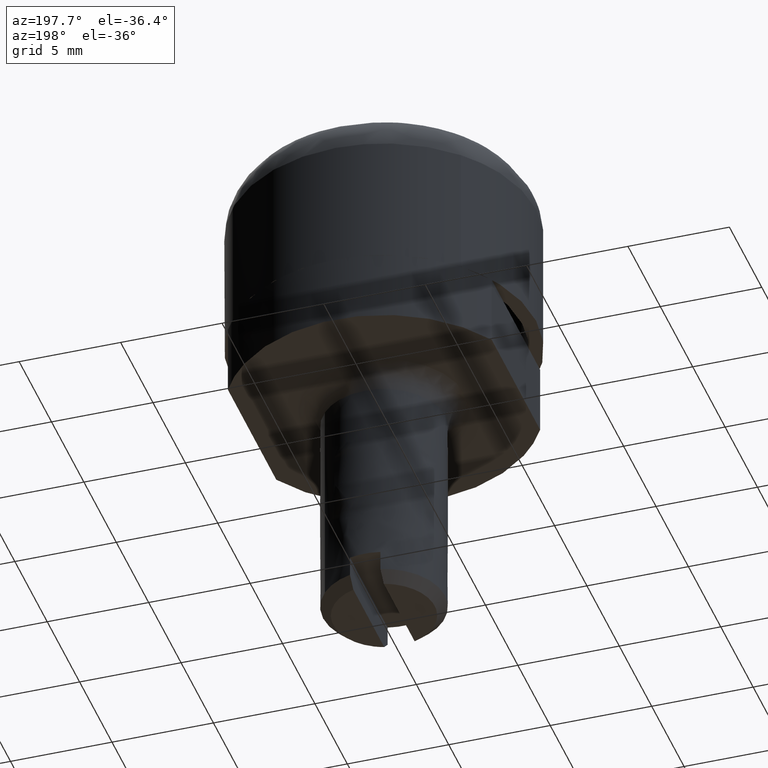
[diagram: clean part render]
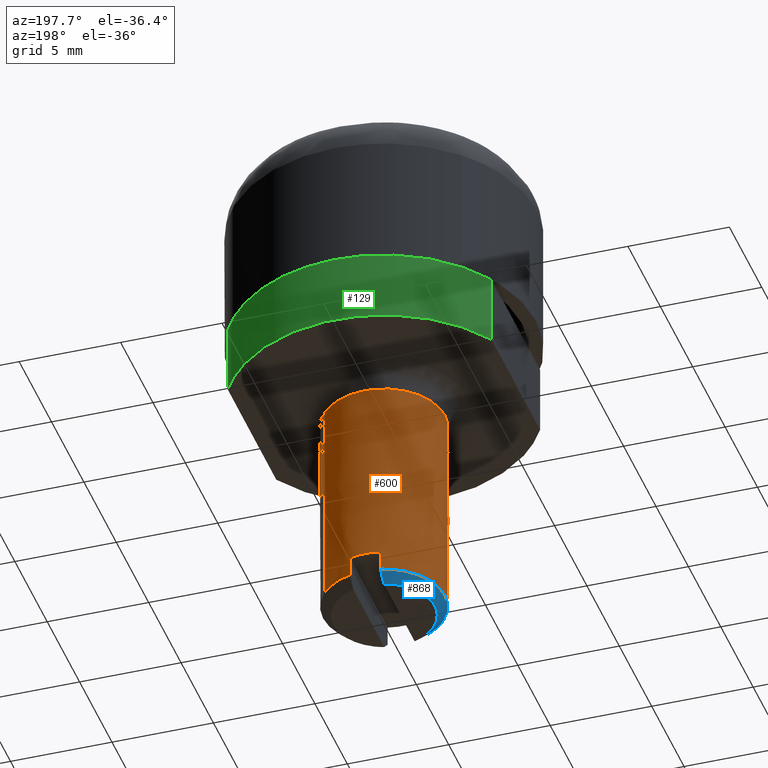
[diagram: same view with three faces highlighted in distinct colors, each labeled with its STEP entity id]
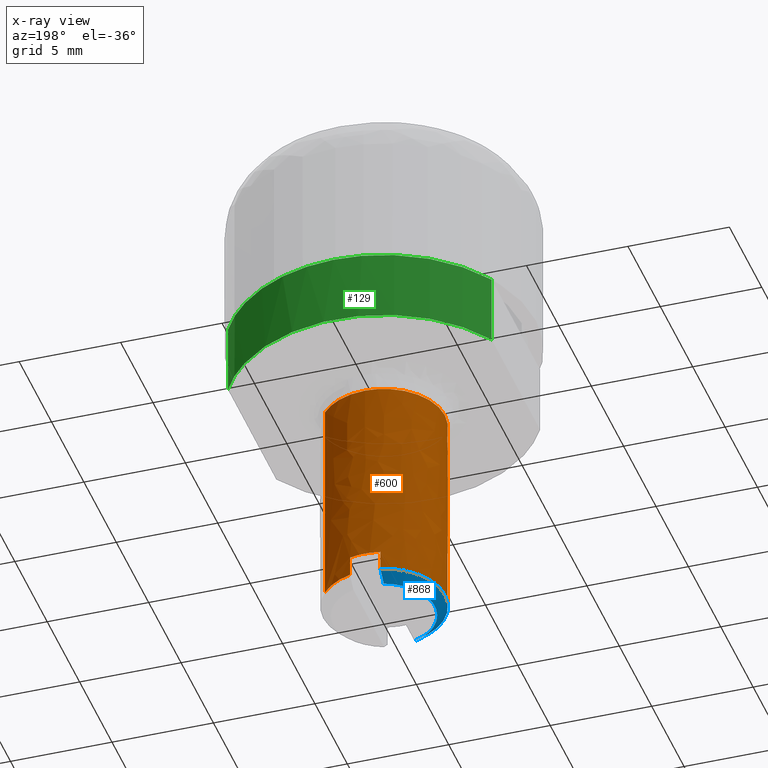
[diagram: x-ray of the same camera — body ghosted, the three highlighted faces saturated]
A machine part, auxiliary view with three faces highlighted in distinct colors.
The next image is the same camera in x-ray (body ghosted, the three faces saturated) — at least one of them is partly hidden behind the body in this view.
Their STEP definitions:

[orange] entity #600 — the highlighted face is a freeform B-spline surface patch.
#346=CARTESIAN_POINT('',(-2.999763132611336,-0.037698119658957,-4.499999999975778));
#347=VERTEX_POINT('',#346);
#361=CARTESIAN_POINT('',(-2.297376285157198,-1.929264679715385,-4.499999999978565));
#362=VERTEX_POINT('',#361);
#363=CARTESIAN_POINT('',(-2.297376285157198,-1.929264679715385,-4.499999999978565));
#364=CARTESIAN_POINT('',(-2.455959052806333,-1.740520722466693,-4.499999999977926));
#365=CARTESIAN_POINT('',(-2.696774013518654,-1.368947312245090,-4.499999999976989));
#366=CARTESIAN_POINT('',(-2.936663578310117,-0.722891258606001,-4.499999999975994));
#367=CARTESIAN_POINT('',(-2.996730345150822,-0.284201828073120,-4.499999999975790));
#368=CARTESIAN_POINT('',(-2.999763132611336,-0.037698119658957,-4.499999999975778));
#369=B_SPLINE_CURVE_WITH_KNOTS('',3,(#363,#364,#365,#366,#367,#368),.UNSPECIFIED.,.F.,.U.,(4,1,1,4),(4.451424E-009,0.739553931148252,1.318329389899540,2.057883316596331),.UNSPECIFIED.);
#370=EDGE_CURVE('',#362,#347,#369,.T.);
#456=CARTESIAN_POINT('',(2.297376285157198,1.929264679715385,-4.499999999978565));
#457=VERTEX_POINT('',#456);
#468=CARTESIAN_POINT('',(-0.018831363929755,2.999940896039878,-4.499999999987888));
#469=VERTEX_POINT('',#468);
#470=CARTESIAN_POINT('',(-0.018831363929755,2.999940896039878,-4.499999999987888));
#471=CARTESIAN_POINT('',(0.180212532569581,3.001215222277387,-4.499999999987081));
#472=CARTESIAN_POINT('',(0.523595422554449,2.969062076635223,-4.499999999985707));
#473=CARTESIAN_POINT('',(0.975218947820370,2.846564850168240,-4.499999999983871));
#474=CARTESIAN_POINT('',(1.418858293397856,2.659721774321536,-4.499999999982099));
#475=CARTESIAN_POINT('',(1.873046677086814,2.370615902700119,-4.499999999980267));
#476=CARTESIAN_POINT('',(2.169389122831132,2.081707875464126,-4.499999999979076));
#477=CARTESIAN_POINT('',(2.297376285157198,1.929264679715385,-4.499999999978565));
#478=B_SPLINE_CURVE_WITH_KNOTS('',3,(#470,#471,#472,#473,#474,#475,#476,#477),.UNSPECIFIED.,.F.,.U.,(4,1,1,1,1,4),(7.144080E-009,0.597140019803482,1.029554977656867,1.400188935668898,2.038513050043141,2.635653062702561),.UNSPECIFIED.);
#479=EDGE_CURVE('',#469,#457,#478,.T.);
#481=CARTESIAN_POINT('',(-3.0,0.0,-4.500000000000000));
#482=VERTEX_POINT('',#481);
#483=CARTESIAN_POINT('',(-3.0,0.0,-4.500000000000000));
#484=CARTESIAN_POINT('',(-3.000040067102521,0.220012352885969,-4.500000000000000));
#485=CARTESIAN_POINT('',(-2.954073572321652,0.635568828050411,-4.499999999999796));
#486=CARTESIAN_POINT('',(-2.769886132041665,1.195563584765112,-4.499999999999039));
#487=CARTESIAN_POINT('',(-2.534114438776829,1.625921563100044,-4.499999999998067));
#488=CARTESIAN_POINT('',(-2.238540539340337,2.016518895890759,-4.499999999996873));
#489=CARTESIAN_POINT('',(-1.892727450440693,2.347914660210110,-4.499999999995473));
#490=CARTESIAN_POINT('',(-1.514948621890361,2.599114926730439,-4.499999999993929));
#491=CARTESIAN_POINT('',(-1.152821852790187,2.777860580665947,-4.499999999992478));
#492=CARTESIAN_POINT('',(-0.678489309764464,2.943704945094957,-4.499999999990547));
#493=CARTESIAN_POINT('',(-0.275512820174190,2.998405519271288,-4.499999999988934));
#494=CARTESIAN_POINT('',(-0.018831363929755,2.999940896039878,-4.499999999987888));
#495=B_SPLINE_CURVE_WITH_KNOTS('',3,(#483,#484,#485,#486,#487,#488,#489,#490,#491,#492,#493,#494),.UNSPECIFIED.,.F.,.U.,(4,1,1,1,1,1,1,1,1,4),(0.000000010308226,0.660030275002896,1.246734357943298,1.760097363153323,2.126789838268186,2.713471685983198,3.190169100183120,3.483520956439575,3.923549701219110,4.693586707976055),.UNSPECIFIED.);
#496=EDGE_CURVE('',#482,#469,#495,.T.);
#498=CARTESIAN_POINT('',(-2.999763132611336,-0.037698119658957,-4.499999999975778));
#499=CARTESIAN_POINT('',(-3.0,0.0,-4.500000000000000));
#500=QUASI_UNIFORM_CURVE('',1,(#498,#499),.UNSPECIFIED.,.F.,.U.);
#501=EDGE_CURVE('',#347,#482,#500,.T.);
#509=CARTESIAN_POINT('',(-2.297376296188659,-1.929264666579077,-4.237499999975177));
#510=CARTESIAN_POINT('',(-4.226640962767736,0.368111629609582,-4.237499999975177));
#511=CARTESIAN_POINT('',(-1.929264666579077,2.297376296188659,-4.237499999975177));
#512=CARTESIAN_POINT('',(0.368111629609582,4.226640962767736,-4.237499999975177));
#513=CARTESIAN_POINT('',(2.297376296188659,1.929264666579077,-4.237499999975177));
#514=CARTESIAN_POINT('',(-2.297376296188659,-1.929264666579077,-15.269062500000411));
#515=CARTESIAN_POINT('',(-4.226640962767736,0.368111629609582,-15.269062500000411));
#516=CARTESIAN_POINT('',(-1.929264666579077,2.297376296188659,-15.269062500000411));
#517=CARTESIAN_POINT('',(0.368111629609582,4.226640962767736,-15.269062500000411));
#518=CARTESIAN_POINT('',(2.297376296188659,1.929264666579077,-15.269062500000411));
#526=(BOUNDED_SURFACE()B_SPLINE_SURFACE(2,1,((#509,#514),(#510,#515),(#511,#516),(#512,#517),(#513,#518)),.UNSPECIFIED.,.F.,.F.,.U.)B_SPLINE_SURFACE_WITH_KNOTS((3,2,3),(2,2),(0.0,4.970562748477139,9.941125496954278),(0.0,11.031562500025240),.UNSPECIFIED.)GEOMETRIC_REPRESENTATION_ITEM()RATIONAL_B_SPLINE_SURFACE(((1.0,1.0),(0.707106781186548,0.707106781186548),(1.0,1.0),(0.707106781186548,0.707106781186548),(1.0,1.0)))REPRESENTATION_ITEM('')SURFACE());
#527=ORIENTED_EDGE('',*,*,#370,.T.);
#528=ORIENTED_EDGE('',*,*,#501,.T.);
#529=ORIENTED_EDGE('',*,*,#496,.T.);
#530=ORIENTED_EDGE('',*,*,#479,.T.);
#531=CARTESIAN_POINT('',(2.297376290498585,1.929264673354842,-14.999999999999799));
#532=VERTEX_POINT('',#531);
#533=CARTESIAN_POINT('',(2.297376285157198,1.929264679715385,-4.499999999978565));
#534=CARTESIAN_POINT('',(2.297376290498585,1.929264673354842,-14.999999999999799));
#535=QUASI_UNIFORM_CURVE('',1,(#533,#534),.UNSPECIFIED.,.F.,.U.);
#536=EDGE_CURVE('',#457,#532,#535,.T.);
#537=ORIENTED_EDGE('',*,*,#536,.T.);
#538=CARTESIAN_POINT('',(0.750000000000000,2.904737509655565,-14.999999999999799));
#539=VERTEX_POINT('',#538);
#540=CARTESIAN_POINT('',(0.750000000000000,2.904737509655565,-14.999999999999799));
#541=CARTESIAN_POINT('',(0.984365454758908,2.844286311687188,-14.999999999999780));
#542=CARTESIAN_POINT('',(1.338398493443904,2.705347464707996,-14.999999999999870));
#543=CARTESIAN_POINT('',(1.863754981124429,2.374177242307407,-14.999999999999689));
#544=CARTESIAN_POINT('',(2.141768917019797,2.114647278046655,-14.999999999999931));
#545=CARTESIAN_POINT('',(2.297376290498585,1.929264673354842,-14.999999999999799));
#546=B_SPLINE_CURVE_WITH_KNOTS('',3,(#540,#541,#542,#543,#544,#545),.UNSPECIFIED.,.F.,.U.,(4,1,1,4),(4.335772E-009,0.726087514668889,1.132695392775629,1.858782903108686),.UNSPECIFIED.);
#547=EDGE_CURVE('',#539,#532,#546,.T.);
#548=ORIENTED_EDGE('',*,*,#547,.F.);
#549=CARTESIAN_POINT('',(0.750000000000000,2.904737509655585,-14.0));
#550=VERTEX_POINT('',#549);
#551=CARTESIAN_POINT('',(0.750000000000000,2.904737509655565,-14.999999999999799));
#552=CARTESIAN_POINT('',(0.750000000000000,2.904737509655585,-14.0));
#553=QUASI_UNIFORM_CURVE('',1,(#551,#552),.UNSPECIFIED.,.F.,.U.);
#554=EDGE_CURVE('',#539,#550,#553,.T.);
#555=ORIENTED_EDGE('',*,*,#554,.T.);
#556=CARTESIAN_POINT('',(-0.750000000000000,2.904737509655565,-14.0));
#557=VERTEX_POINT('',#556);
#558=CARTESIAN_POINT('',(0.750000000000000,2.904737509655585,-14.0));
#559=CARTESIAN_POINT('',(0.490066336209845,2.971942703427581,-14.000000000000020));
#560=CARTESIAN_POINT('',(-0.016297268594395,3.032024664104668,-14.0));
#561=CARTESIAN_POINT('',(-0.520642918801046,2.964012642182939,-14.0));
#562=CARTESIAN_POINT('',(-0.750000000000000,2.904737509655565,-14.0));
#563=B_SPLINE_CURVE_WITH_KNOTS('',3,(#558,#559,#560,#561,#562),.UNSPECIFIED.,.F.,.U.,(4,1,4),(2.646635E-009,0.805418209116933,1.516085469469354),.UNSPECIFIED.);
#564=EDGE_CURVE('',#550,#557,#563,.T.);
#565=ORIENTED_EDGE('',*,*,#564,.T.);
#566=CARTESIAN_POINT('',(-0.750000000000000,2.904737509655565,-14.999999999999799));
#567=VERTEX_POINT('',#566);
#568=CARTESIAN_POINT('',(-0.750000000000000,2.904737509655565,-14.0));
#569=CARTESIAN_POINT('',(-0.750000000000000,2.904737509655565,-14.999999999999799));
#570=QUASI_UNIFORM_CURVE('',1,(#568,#569),.UNSPECIFIED.,.F.,.U.);
#571=EDGE_CURVE('',#557,#567,#570,.T.);
#572=ORIENTED_EDGE('',*,*,#571,.T.);
#573=CARTESIAN_POINT('',(-2.297376290498585,-1.929264673354842,-14.999999999999799));
#574=VERTEX_POINT('',#573);
#575=CARTESIAN_POINT('',(-2.297376290498585,-1.929264673354842,-14.999999999999799));
#576=CARTESIAN_POINT('',(-2.429108805555042,-1.772437068201558,-14.999999999999790));
#577=CARTESIAN_POINT('',(-2.673615697547601,-1.412001133079823,-14.999999999999799));
#578=CARTESIAN_POINT('',(-2.893927731185535,-0.859649540267899,-14.999999999999840));
#579=CARTESIAN_POINT('',(-2.994977221643329,-0.323844444255617,-14.999999999999719));
#580=CARTESIAN_POINT('',(-3.006861747197676,0.086885687235917,-14.999999999999901));
#581=CARTESIAN_POINT('',(-2.967868187357036,0.487196904483599,-14.999999999999780));
#582=CARTESIAN_POINT('',(-2.880268149151247,0.880434891968303,-14.999999999999920));
#583=CARTESIAN_POINT('',(-2.721960052930147,1.285181102843161,-14.999999999999661));
#584=CARTESIAN_POINT('',(-2.492756869102959,1.690568270786420,-14.999999999999989));
#585=CARTESIAN_POINT('',(-2.233007888026295,2.019619582372870,-14.999999999999471));
#586=CARTESIAN_POINT('',(-1.888857906060130,2.344654176151811,-14.999999999999920));
#587=CARTESIAN_POINT('',(-1.428915994147122,2.666918012190060,-14.999999999999741));
#588=CARTESIAN_POINT('',(-1.009355365272809,2.837855449708481,-14.999999999999840));
#589=CARTESIAN_POINT('',(-0.750000000000000,2.904737509655565,-14.999999999999799));
#590=B_SPLINE_CURVE_WITH_KNOTS('',3,(#575,#576,#577,#578,#579,#580,#581,#582,#583,#584,#585,#586,#587,#588,#589),.UNSPECIFIED.,.F.,.U.,(4,1,1,1,1,1,1,1,1,1,1,1,4),(0.000000039089319,0.614438285649528,1.299789451214820,1.772443016696280,2.245097351679403,2.528687990426998,2.977714281603799,3.450352925154908,3.828467293945512,4.372023809491169,4.702880850721826,5.246437366267666,6.049936427869699),.UNSPECIFIED.);
#591=EDGE_CURVE('',#574,#567,#590,.T.);
#592=ORIENTED_EDGE('',*,*,#591,.F.);
#593=CARTESIAN_POINT('',(-2.297376285157198,-1.929264679715385,-4.499999999978565));
#594=CARTESIAN_POINT('',(-2.297376290498585,-1.929264673354842,-14.999999999999799));
#595=QUASI_UNIFORM_CURVE('',1,(#593,#594),.UNSPECIFIED.,.F.,.U.);
#596=EDGE_CURVE('',#362,#574,#595,.T.);
#597=ORIENTED_EDGE('',*,*,#596,.F.);
#598=EDGE_LOOP('',(#527,#528,#529,#530,#537,#548,#555,#565,#572,#592,#597));
#599=FACE_OUTER_BOUND('',#598,.T.);
#600=ADVANCED_FACE('',(#599),#526,.T.);

[blue] entity #868 — the highlighted face is a freeform B-spline surface patch.
#566=CARTESIAN_POINT('',(-0.750000000000000,2.904737509655565,-14.999999999999799));
#567=VERTEX_POINT('',#566);
#573=CARTESIAN_POINT('',(-2.297376290498585,-1.929264673354842,-14.999999999999799));
#574=VERTEX_POINT('',#573);
#575=CARTESIAN_POINT('',(-2.297376290498585,-1.929264673354842,-14.999999999999799));
#576=CARTESIAN_POINT('',(-2.429108805555042,-1.772437068201558,-14.999999999999790));
#577=CARTESIAN_POINT('',(-2.673615697547601,-1.412001133079823,-14.999999999999799));
#578=CARTESIAN_POINT('',(-2.893927731185535,-0.859649540267899,-14.999999999999840));
#579=CARTESIAN_POINT('',(-2.994977221643329,-0.323844444255617,-14.999999999999719));
#580=CARTESIAN_POINT('',(-3.006861747197676,0.086885687235917,-14.999999999999901));
#581=CARTESIAN_POINT('',(-2.967868187357036,0.487196904483599,-14.999999999999780));
#582=CARTESIAN_POINT('',(-2.880268149151247,0.880434891968303,-14.999999999999920));
#583=CARTESIAN_POINT('',(-2.721960052930147,1.285181102843161,-14.999999999999661));
#584=CARTESIAN_POINT('',(-2.492756869102959,1.690568270786420,-14.999999999999989));
#585=CARTESIAN_POINT('',(-2.233007888026295,2.019619582372870,-14.999999999999471));
#586=CARTESIAN_POINT('',(-1.888857906060130,2.344654176151811,-14.999999999999920));
#587=CARTESIAN_POINT('',(-1.428915994147122,2.666918012190060,-14.999999999999741));
#588=CARTESIAN_POINT('',(-1.009355365272809,2.837855449708481,-14.999999999999840));
#589=CARTESIAN_POINT('',(-0.750000000000000,2.904737509655565,-14.999999999999799));
#590=B_SPLINE_CURVE_WITH_KNOTS('',3,(#575,#576,#577,#578,#579,#580,#581,#582,#583,#584,#585,#586,#587,#588,#589),.UNSPECIFIED.,.F.,.U.,(4,1,1,1,1,1,1,1,1,1,1,1,4),(0.000000039089319,0.614438285649528,1.299789451214820,1.772443016696280,2.245097351679403,2.528687990426998,2.977714281603799,3.450352925154908,3.828467293945512,4.372023809491169,4.702880850721826,5.246437366267666,6.049936427869699),.UNSPECIFIED.);
#591=EDGE_CURVE('',#574,#567,#590,.T.);
#621=CARTESIAN_POINT('',(-0.750000000000000,-2.904737509655565,-14.999999999999799));
#622=VERTEX_POINT('',#621);
#623=CARTESIAN_POINT('',(-0.750000000000000,-2.904737509655565,-14.999999999999799));
#624=CARTESIAN_POINT('',(-0.918730538576644,-2.861185202999421,-14.999999999999780));
#625=CARTESIAN_POINT('',(-1.257724884143169,-2.741321428846136,-14.999999999999829));
#626=CARTESIAN_POINT('',(-1.798052388324045,-2.432772371839064,-14.999999999999780));
#627=CARTESIAN_POINT('',(-2.129331706655839,-2.129489475651198,-14.999999999999829));
#628=CARTESIAN_POINT('',(-2.297376290498585,-1.929264673354842,-14.999999999999799));
#629=B_SPLINE_CURVE_WITH_KNOTS('',3,(#623,#624,#625,#626,#627,#628),.UNSPECIFIED.,.F.,.U.,(4,1,1,4),(4.335925E-009,0.522782825220151,1.074605363878708,1.858782903108684),.UNSPECIFIED.);
#630=EDGE_CURVE('',#622,#574,#629,.T.);
#794=CARTESIAN_POINT('',(-0.750000000000000,2.384848003542226,-15.500000000000000));
#795=VERTEX_POINT('',#794);
#796=CARTESIAN_POINT('',(-0.750000000000000,-2.384848003542226,-15.500000000000000));
#797=VERTEX_POINT('',#796);
#803=CARTESIAN_POINT('',(-0.750000000000000,2.904737509655565,-14.999999999999799));
#804=CARTESIAN_POINT('',(-0.750000000000000,2.732000227821514,-15.167247734292211));
#805=CARTESIAN_POINT('',(-0.750000000000000,2.558835971659446,-15.334051813370900));
#806=CARTESIAN_POINT('',(-0.750000000000000,2.384848003542226,-15.500000000000000));
#807=B_SPLINE_CURVE_WITH_KNOTS('',3,(#803,#804,#805,#806),.UNSPECIFIED.,.F.,.U.,(4,4),(0.0,0.097459408056544),.UNSPECIFIED.);
#808=EDGE_CURVE('',#567,#795,#807,.T.);
#813=CARTESIAN_POINT('',(-0.750000000000000,-2.384848003542226,-15.500000000000000));
#814=CARTESIAN_POINT('',(-0.750000000000000,-2.558816355898766,-15.334071573065239));
#815=CARTESIAN_POINT('',(-0.750000000000000,-2.731983846120825,-15.167263146179611));
#816=CARTESIAN_POINT('',(-0.750000000000000,-2.904737509655565,-14.999999999999799));
#817=B_SPLINE_CURVE_WITH_KNOTS('',3,(#813,#814,#815,#816),.UNSPECIFIED.,.F.,.U.,(4,4),(0.903562280401099,1.0),.UNSPECIFIED.);
#818=EDGE_CURVE('',#797,#622,#817,.T.);
#823=CARTESIAN_POINT('',(-0.557772107581097,-2.424158931671734,-15.512500000000010));
#824=CARTESIAN_POINT('',(-0.675562925777619,-2.936095007569009,-14.987187499999800));
#825=CARTESIAN_POINT('',(-2.520817304375933,-1.972483984791033,-15.512500000000010));
#826=CARTESIAN_POINT('',(-3.053165782850575,-2.389034936855790,-14.987187499999797));
#827=CARTESIAN_POINT('',(-2.487152584790303,0.041572466491844,-15.512500000000010));
#828=CARTESIAN_POINT('',(-3.012391717332348,0.050351777568832,-14.987187499999800));
#829=CARTESIAN_POINT('',(-2.453487865204673,2.055628917774722,-15.512500000000010));
#830=CARTESIAN_POINT('',(-2.971617651814121,2.489738491993454,-14.987187499999797));
#831=CARTESIAN_POINT('',(-0.476444090869930,2.441445735271302,-15.512500000000010));
#832=CARTESIAN_POINT('',(-0.577059984934348,2.957032453989040,-14.987187499999800));
#840=(BOUNDED_SURFACE()B_SPLINE_SURFACE(1,2,((#823,#825,#827,#829,#831),(#824,#826,#828,#830,#832)),.UNSPECIFIED.,.F.,.F.,.U.)B_SPLINE_SURFACE_WITH_KNOTS((2,2),(3,2,3),(0.0,1.0),(0.0,4.267571447210720,8.535142894421441),.UNSPECIFIED.)GEOMETRIC_REPRESENTATION_ITEM()RATIONAL_B_SPLINE_SURFACE(((1.0,0.777145961456971,1.0,0.777145961456971,1.0),(1.0,0.777145961456971,1.0,0.777145961456971,1.0)))REPRESENTATION_ITEM('')SURFACE());
#841=ORIENTED_EDGE('',*,*,#630,.T.);
#842=ORIENTED_EDGE('',*,*,#591,.T.);
#843=ORIENTED_EDGE('',*,*,#808,.T.);
#844=CARTESIAN_POINT('',(-0.750000000000000,-2.384848003542226,-15.500000000000000));
#845=CARTESIAN_POINT('',(-0.962334088813208,-2.318149571187265,-15.500000000000030));
#846=CARTESIAN_POINT('',(-1.278555783606522,-2.169826385349289,-15.499999999999909));
#847=CARTESIAN_POINT('',(-1.681172277335817,-1.866307545612461,-15.500000000000130));
#848=CARTESIAN_POINT('',(-1.993813272720216,-1.535224433034836,-15.499999999999920));
#849=CARTESIAN_POINT('',(-2.231084840586564,-1.155777778884401,-15.499999999999959));
#850=CARTESIAN_POINT('',(-2.398971977797300,-0.742374419693305,-15.500000000000091));
#851=CARTESIAN_POINT('',(-2.481200921466095,-0.378992733664192,-15.499999999999959));
#852=CARTESIAN_POINT('',(-2.509191816738544,0.024648947711016,-15.500000000000091));
#853=CARTESIAN_POINT('',(-2.479103049326667,0.404128042084917,-15.499999999999980));
#854=CARTESIAN_POINT('',(-2.385992482159391,0.772910948443925,-15.500000000000000));
#855=CARTESIAN_POINT('',(-2.246179169344023,1.117189922176157,-15.500000000000011));
#856=CARTESIAN_POINT('',(-2.062436414946912,1.431376076991986,-15.500000000000011));
#857=CARTESIAN_POINT('',(-1.836889535919921,1.706063229109839,-15.499999999999989));
#858=CARTESIAN_POINT('',(-1.578313590280487,1.949260650332234,-15.499999999999959));
#859=CARTESIAN_POINT('',(-1.234056234567469,2.193110268125035,-15.500000000000190));
#860=CARTESIAN_POINT('',(-0.930862842176532,2.328008132863052,-15.499999999999760));
#861=CARTESIAN_POINT('',(-0.750000000000000,2.384848003542226,-15.500000000000000));
#862=B_SPLINE_CURVE_WITH_KNOTS('',3,(#844,#845,#846,#847,#848,#849,#850,#851,#852,#853,#854,#855,#856,#857,#858,#859,#860,#861),.UNSPECIFIED.,.F.,.U.,(4,1,1,1,1,1,1,1,1,1,1,1,1,1,1,4),(0.000000059937368,0.667664233783110,1.038598134013539,1.508450225788612,2.027753724324200,2.373965306095694,2.843814379549694,3.140558154781496,3.585656462979751,3.981317911469663,4.278062794072717,4.698450422626246,5.069385849335495,5.341400868294962,5.761797714711947,6.330544170517494),.UNSPECIFIED.);
#863=EDGE_CURVE('',#797,#795,#862,.T.);
#864=ORIENTED_EDGE('',*,*,#863,.F.);
#865=ORIENTED_EDGE('',*,*,#818,.T.);
#866=EDGE_LOOP('',(#841,#842,#843,#864,#865));
#867=FACE_OUTER_BOUND('',#866,.T.);
#868=ADVANCED_FACE('',(#867),#840,.T.);

[green] entity #129 — the highlighted face is a freeform B-spline surface patch.
#10=CARTESIAN_POINT('',(-6.500000000000000,3.741657386773940,0.0));
#11=VERTEX_POINT('',#10);
#12=CARTESIAN_POINT('',(6.500000000000000,3.741657386773935,0.0));
#13=VERTEX_POINT('',#12);
#14=CARTESIAN_POINT('',(-6.500000000000000,3.741657386773940,0.0));
#15=CARTESIAN_POINT('',(-6.275283384503942,4.132132352465598,0.0));
#16=CARTESIAN_POINT('',(-5.837891935122653,4.754589229707348,0.0));
#17=CARTESIAN_POINT('',(-5.142417322097016,5.480531446964246,0.0));
#18=CARTESIAN_POINT('',(-4.434531527033030,6.072268080841468,0.0));
#19=CARTESIAN_POINT('',(-3.537556521204224,6.651549272886815,0.0));
#20=CARTESIAN_POINT('',(-2.462482364402666,7.118235966130587,0.0));
#21=CARTESIAN_POINT('',(-1.288931759172917,7.417674165824830,0.0));
#22=CARTESIAN_POINT('',(-0.286997320670188,7.516476993747227,0.0));
#23=CARTESIAN_POINT('',(0.635137103626559,7.486225968714050,0.0));
#24=CARTESIAN_POINT('',(1.386980202211732,7.383990748909625,0.0));
#25=CARTESIAN_POINT('',(2.164139784260522,7.195829297870091,0.0));
#26=CARTESIAN_POINT('',(2.897914655690706,6.932927078662085,0.0));
#27=CARTESIAN_POINT('',(3.765421799577626,6.513351076427613,0.0));
#28=CARTESIAN_POINT('',(4.570458943719809,5.979368728930646,0.0));
#29=CARTESIAN_POINT('',(5.289454452973154,5.337134809008748,0.0));
#30=CARTESIAN_POINT('',(5.922118149813474,4.637681239177550,0.0));
#31=CARTESIAN_POINT('',(6.295698574023362,4.096626232031681,0.0));
#32=CARTESIAN_POINT('',(6.500000000000000,3.741657386773935,0.0));
#33=B_SPLINE_CURVE_WITH_KNOTS('',3,(#14,#15,#16,#17,#18,#19,#20,#21,#22,#23,#24,#25,#26,#27,#28,#29,#30,#31,#32),.UNSPECIFIED.,.F.,.U.,(4,1,1,1,1,1,1,1,1,1,1,1,1,1,1,1,4),(6.136098E-009,1.351552963088817,2.273074689706574,3.010294977806991,4.116121648143688,5.467689773090257,6.512072980356399,7.740766695720189,8.477977447048886,9.276623397755270,10.013837600605260,10.873928008454641,11.611145456106680,12.901278616285310,13.761360571552419,14.498580050755301,15.727266542327721),.UNSPECIFIED.);
#34=EDGE_CURVE('',#11,#13,#33,.T.);
#75=CARTESIAN_POINT('',(6.648129287422091,3.471653349302116,0.087499999999999));
#76=CARTESIAN_POINT('',(6.648129287422091,3.471653349302116,-3.589687499999949));
#77=CARTESIAN_POINT('',(-0.314930105916123,16.805737840259983,0.087499999999999));
#78=CARTESIAN_POINT('',(-0.314930105916123,16.805737840259983,-3.589687499999949));
#79=CARTESIAN_POINT('',(-6.773529724355026,3.220138983534545,0.087499999999999));
#80=CARTESIAN_POINT('',(-6.773529724355026,3.220138983534545,-3.589687499999949));
#88=(BOUNDED_SURFACE()B_SPLINE_SURFACE(1,2,((#75,#77,#79),(#76,#78,#80)),.UNSPECIFIED.,.F.,.F.,.U.)B_SPLINE_SURFACE_WITH_KNOTS((2,2),(3,3),(0.0,3.677187499999948),(0.0,18.564563301564188),.UNSPECIFIED.)GEOMETRIC_REPRESENTATION_ITEM()RATIONAL_B_SPLINE_SURFACE(((1.0,0.446197813109809,1.0),(1.0,0.446197813109809,1.0)))REPRESENTATION_ITEM('')SURFACE());
#89=CARTESIAN_POINT('',(-6.500000000000000,3.741657386773940,-3.499999999999950));
#90=VERTEX_POINT('',#89);
#91=CARTESIAN_POINT('',(6.500000000000000,3.741657386773935,-3.499999999999950));
#92=VERTEX_POINT('',#91);
#93=CARTESIAN_POINT('',(-6.500000000000000,3.741657386773940,-3.499999999999950));
#94=CARTESIAN_POINT('',(-6.275283086701826,4.132131971480025,-3.499999999999949));
#95=CARTESIAN_POINT('',(-5.837892796944033,4.754590332899656,-3.499999999999955));
#96=CARTESIAN_POINT('',(-5.142417087832397,5.480531396489080,-3.499999999999944));
#97=CARTESIAN_POINT('',(-4.497452159231906,6.019665974571774,-3.499999999999962));
#98=CARTESIAN_POINT('',(-3.781489694448180,6.498813435437323,-3.499999999999950));
#99=CARTESIAN_POINT('',(-3.048462050680623,6.868310810371626,-3.499999999999945));
#100=CARTESIAN_POINT('',(-2.223782364711962,7.179110475594116,-3.499999999999939));
#101=CARTESIAN_POINT('',(-1.288934505679402,7.417680938364563,-3.499999999999974));
#102=CARTESIAN_POINT('',(-0.286997073845672,7.516476427856218,-3.499999999999809));
#103=CARTESIAN_POINT('',(0.635137062963146,7.486226061796706,-3.500000000000045));
#104=CARTESIAN_POINT('',(1.386980202219392,7.383990749007122,-3.499999999999924));
#105=CARTESIAN_POINT('',(2.164139784258972,7.195829297835144,-3.499999999999863));
#106=CARTESIAN_POINT('',(2.897914655724784,6.932927078671277,-3.500000000000191));
#107=CARTESIAN_POINT('',(3.765421799340759,6.513351076430094,-3.499999999999762));
#108=CARTESIAN_POINT('',(4.570458944516068,5.979368729067895,-3.500000000000037));
#109=CARTESIAN_POINT('',(5.289454450251642,5.337134806743963,-3.499999999999979));
#110=CARTESIAN_POINT('',(5.922118163316658,4.637681253675155,-3.499999999999721));
#111=CARTESIAN_POINT('',(6.295698546139178,4.096626210726292,-3.500000000000384));
#112=CARTESIAN_POINT('',(6.500000000000000,3.741657386773935,-3.499999999999950));
#113=B_SPLINE_CURVE_WITH_KNOTS('',3,(#93,#94,#95,#96,#97,#98,#99,#100,#101,#102,#103,#104,#105,#106,#107,#108,#109,#110,#111,#112),.UNSPECIFIED.,.F.,.U.,(4,1,1,1,1,1,1,1,1,1,1,1,1,1,1,1,1,4),(6.136098E-009,1.351552963088817,2.273074689706574,3.010294977806991,3.870381983741938,4.853338906863623,5.467689773090257,6.512072980356399,7.740766695720189,8.477977447048886,9.276623397755270,10.013837600605260,10.873928008454641,11.611145456106680,12.901278616285310,13.761360571552419,14.498580050755301,15.727266542327721),.UNSPECIFIED.);
#114=EDGE_CURVE('',#90,#92,#113,.T.);
#115=ORIENTED_EDGE('',*,*,#114,.F.);
#116=CARTESIAN_POINT('',(-6.500000000000000,3.741657386773940,0.0));
#117=CARTESIAN_POINT('',(-6.500000000000000,3.741657386773940,-3.499999999999950));
#118=QUASI_UNIFORM_CURVE('',1,(#116,#117),.UNSPECIFIED.,.F.,.U.);
#119=EDGE_CURVE('',#11,#90,#118,.T.);
#120=ORIENTED_EDGE('',*,*,#119,.F.);
#121=ORIENTED_EDGE('',*,*,#34,.T.);
#122=CARTESIAN_POINT('',(6.500000000000000,3.741657386773935,0.0));
#123=CARTESIAN_POINT('',(6.500000000000000,3.741657386773935,-3.499999999999950));
#124=QUASI_UNIFORM_CURVE('',1,(#122,#123),.UNSPECIFIED.,.F.,.U.);
#125=EDGE_CURVE('',#13,#92,#124,.T.);
#126=ORIENTED_EDGE('',*,*,#125,.T.);
#127=EDGE_LOOP('',(#115,#120,#121,#126));
#128=FACE_OUTER_BOUND('',#127,.T.);
#129=ADVANCED_FACE('',(#128),#88,.T.);